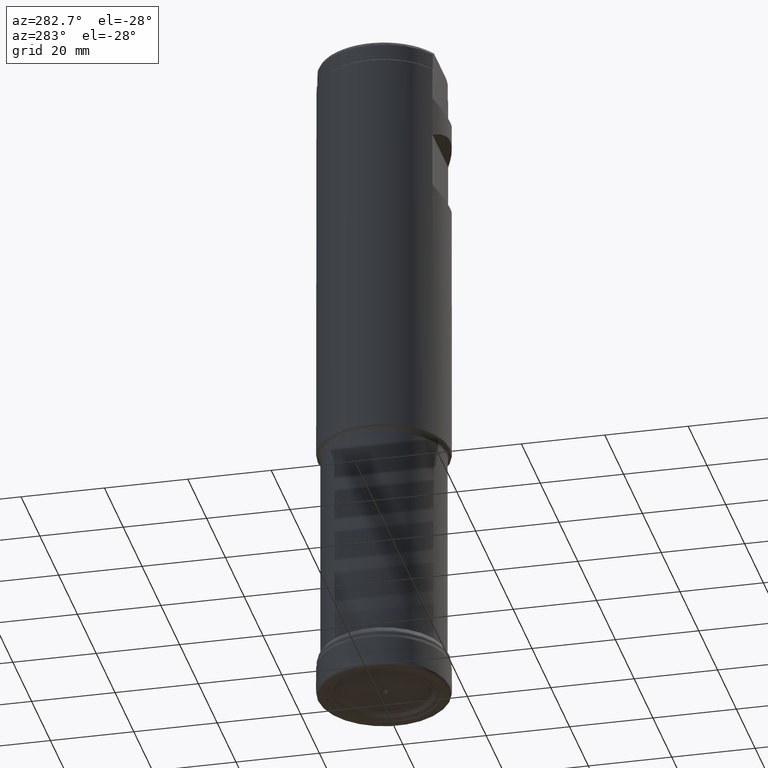
[diagram: clean part render]
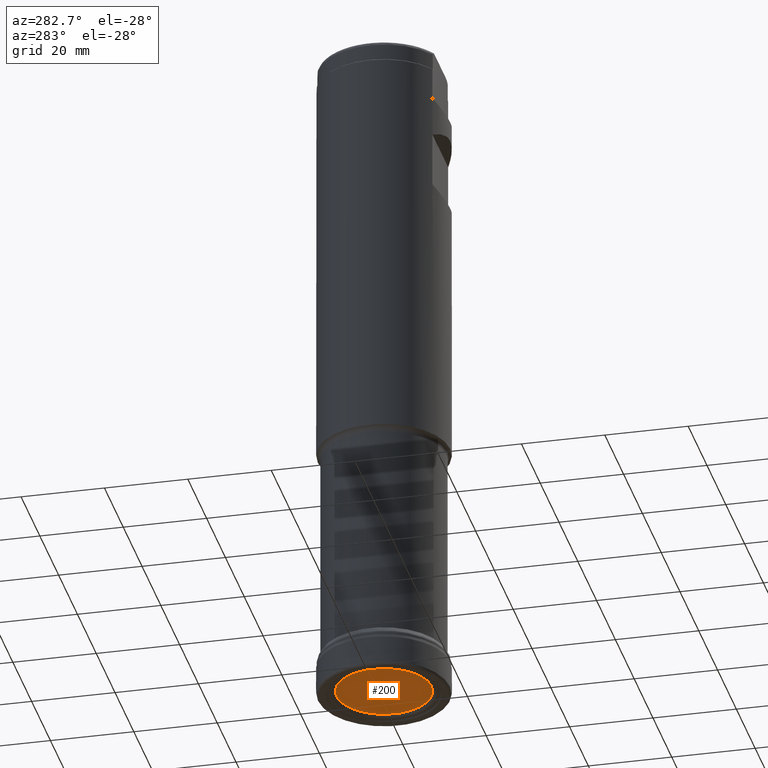
[diagram: same view with one face highlighted and labeled with its STEP entity id]
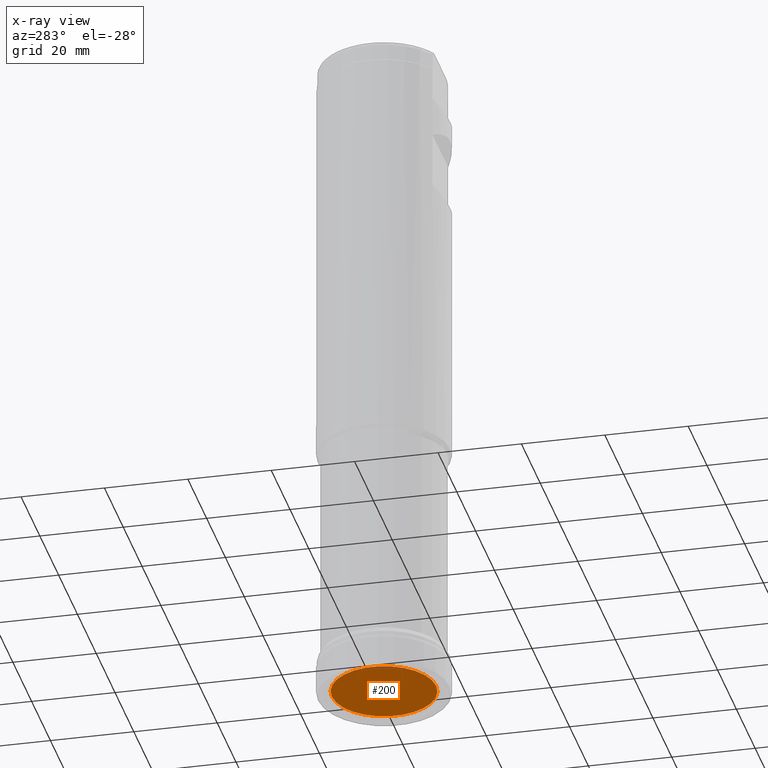
[diagram: x-ray of the same camera — body ghosted, the highlighted face saturated]
A machine part, auxiliary view. The second image highlights one B-rep face of the part: STEP entity #200.
The next image is the same camera in x-ray: the body ghosted, the highlighted face saturated — about 0% of this face is hidden behind the body in this view.
In plain terms, the highlighted planar face has unit normal (0, -0, -1).
Its self-contained STEP definition (entity closure, byte-faithful):
#177=PLANE('',#1019);
#200=ADVANCED_FACE('',(#332,#333),#177,.T.);
#278=CIRCLE('',#1017,1.);
#279=CIRCLE('',#1018,12.5090813011338);
#332=FACE_BOUND('',#440,.T.);
#333=FACE_BOUND('',#441,.T.);
#440=EDGE_LOOP('',(#605));
#441=EDGE_LOOP('',(#606));
#605=ORIENTED_EDGE('',*,*,#866,.T.);
#606=ORIENTED_EDGE('',*,*,#867,.T.);
#783=VERTEX_POINT('',#1710);
#784=VERTEX_POINT('',#1712);
#866=EDGE_CURVE('',#783,#783,#278,.T.);
#867=EDGE_CURVE('',#784,#784,#279,.T.);
#1017=AXIS2_PLACEMENT_3D('',#1709,#1138,#1139);
#1018=AXIS2_PLACEMENT_3D('',#1711,#1140,#1141);
#1019=AXIS2_PLACEMENT_3D('',#1713,#1142,#1143);
#1138=DIRECTION('',(0.,1.17145536458252E-15,1.));
#1139=DIRECTION('',(0.,-1.,1.0842021724855E-15));
#1140=DIRECTION('',(0.,-1.17145536458252E-15,-1.));
#1141=DIRECTION('',(0.,1.,-1.17875559290405E-15));
#1142=DIRECTION('',(0.,-1.17145536458252E-15,-1.));
#1143=DIRECTION('',(0.,1.,-1.17137202715334E-15));
#1709=CARTESIAN_POINT('',(0.,1.28860090104078E-15,1.1));
#1710=CARTESIAN_POINT('',(0.,-0.999999999999999,1.1));
#1711=CARTESIAN_POINT('',(0.,1.28860090104077E-15,1.1));
#1712=CARTESIAN_POINT('',(0.,12.5090813011338,1.09999999999998));
#1713=CARTESIAN_POINT('',(13.1288852038523,1.28860090104077E-15,1.1));